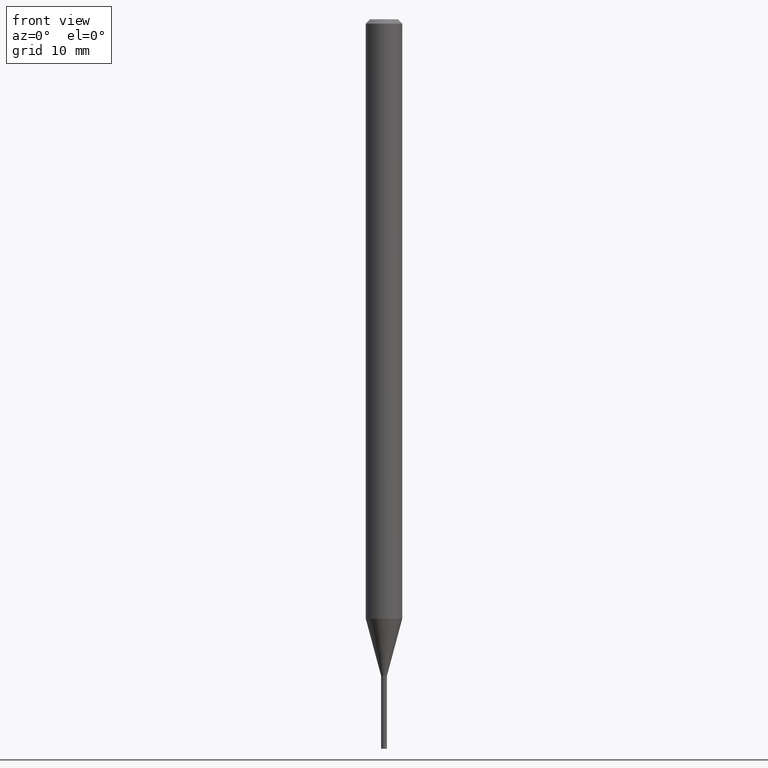
[diagram: clean part render]
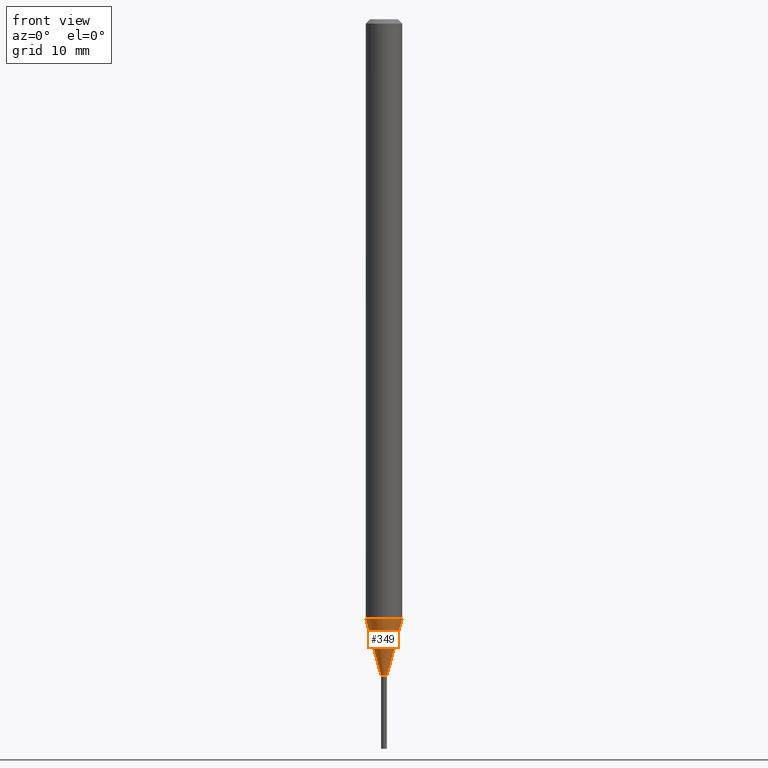
[diagram: same view with one face highlighted and labeled with its STEP entity id]
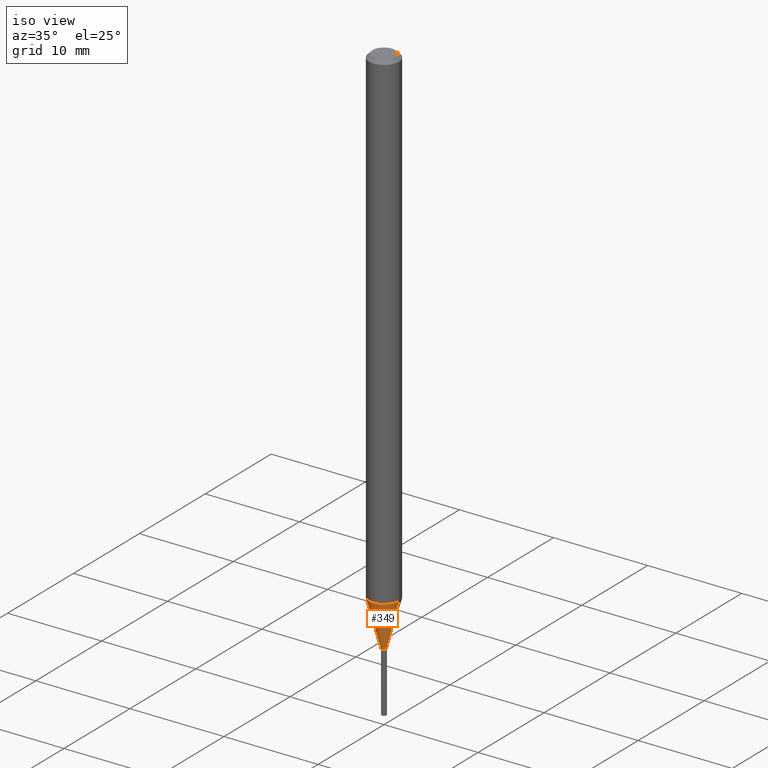
[diagram: same view with one face highlighted and labeled with its STEP entity id]
A machine part, front view. The second image highlights one B-rep face of the part: STEP entity #349.
A second angle (iso view) of the same face is appended — the face is thin or edge-on in the first view.
In plain terms, the highlighted conical surface has half-angle 15 deg.
Its self-contained STEP definition (entity closure, byte-faithful):
#5 = EDGE_CURVE ( 'NONE', #34, #466, #188, .T. ) ;
#10 = CARTESIAN_POINT ( 'NONE',  ( 5.023157587683648864E-29, -7.171737760509410545E-15, -2.054067332602632856 ) ) ;
#12 = VECTOR ( 'NONE', #259, 39.37007874015748143 ) ;
#17 = CARTESIAN_POINT ( 'NONE',  ( 0.009999999999999649794, -7.925662639173938591E-15, -2.250000000000000000 ) ) ;
#18 = CARTESIAN_POINT ( 'NONE',  ( -0.009999999999999649794, -7.256213644740208937E-15, -2.250000000000000000 ) ) ;
#22 = DIRECTION ( 'NONE',  ( 1.000000000000000000, -6.982962677686285643E-15, 0.000000000000000000 ) ) ;
#33 = EDGE_CURVE ( 'NONE', #113, #68, #265, .T. ) ;
#34 = VERTEX_POINT ( 'NONE', #18 ) ;
#55 = CIRCLE ( 'NONE', #118, 0.06250000000000000000 ) ;
#56 = CONICAL_SURFACE ( 'NONE', #299, 0.009999999999999649794, 0.2617993877991497964 ) ;
#68 = VERTEX_POINT ( 'NONE', #413 ) ;
#93 = AXIS2_PLACEMENT_3D ( 'NONE', #167, #203, #344 ) ;
#102 = FACE_OUTER_BOUND ( 'NONE', #276, .T. ) ;
#113 = VERTEX_POINT ( 'NONE', #17 ) ;
#118 = AXIS2_PLACEMENT_3D ( 'NONE', #10, #448, #231 ) ;
#139 = EDGE_CURVE ( 'NONE', #466, #68, #55, .T. ) ;
#158 = VECTOR ( 'NONE', #439, 39.37007874015748143 ) ;
#167 = CARTESIAN_POINT ( 'NONE',  ( 5.502304813916557343E-29, -7.855833012397078448E-15, -2.250000000000000000 ) ) ;
#170 = ORIENTED_EDGE ( 'NONE', *, *, #5, .F. ) ;
#188 = LINE ( 'NONE', #328, #158 ) ;
#202 = CARTESIAN_POINT ( 'NONE',  ( 5.502304813916557343E-29, -7.855833012397078448E-15, -2.250000000000000000 ) ) ;
#203 = DIRECTION ( 'NONE',  ( -2.445468806185136597E-29, 3.491481338843145583E-15, 1.000000000000000000 ) ) ;
#207 = CIRCLE ( 'NONE', #93, 0.009999999999999649794 ) ;
#231 = DIRECTION ( 'NONE',  ( 1.000000000000000000, -6.982962677686262766E-15, 0.000000000000000000 ) ) ;
#243 = DIRECTION ( 'NONE',  ( -2.445468806185136597E-29, 3.491481338843145583E-15, 1.000000000000000000 ) ) ;
#259 = DIRECTION ( 'NONE',  ( 0.2588190451025211281, 1.565188264969623940E-15, 0.9659258262890682012 ) ) ;
#265 = LINE ( 'NONE', #442, #12 ) ;
#276 = EDGE_LOOP ( 'NONE', ( #170, #390, #357, #423 ) ) ;
#298 = EDGE_CURVE ( 'NONE', #34, #113, #207, .T. ) ;
#299 = AXIS2_PLACEMENT_3D ( 'NONE', #202, #243, #22 ) ;
#328 = CARTESIAN_POINT ( 'NONE',  ( -0.009999999999999649794, -7.784778738821069944E-15, -2.250000000000000000 ) ) ;
#344 = DIRECTION ( 'NONE',  ( 1.000000000000000000, -6.982962677686285643E-15, 0.000000000000000000 ) ) ;
#349 = ADVANCED_FACE ( 'NONE', ( #102 ), #56, .T. ) ;
#350 = CARTESIAN_POINT ( 'NONE',  ( -0.06250000000000000000, -6.727648550659347140E-15, -2.054067332602632856 ) ) ;
#357 = ORIENTED_EDGE ( 'NONE', *, *, #33, .T. ) ;
#390 = ORIENTED_EDGE ( 'NONE', *, *, #298, .T. ) ;
#413 = CARTESIAN_POINT ( 'NONE',  ( 0.06250000000000000000, -7.608172927864802215E-15, -2.054067332602632856 ) ) ;
#423 = ORIENTED_EDGE ( 'NONE', *, *, #139, .F. ) ;
#439 = DIRECTION ( 'NONE',  ( -0.2588190451025211281, 5.211531920934548675E-15, 0.9659258262890682012 ) ) ;
#442 = CARTESIAN_POINT ( 'NONE',  ( 0.009999999999999649794, -7.925662639173938591E-15, -2.250000000000000000 ) ) ;
#448 = DIRECTION ( 'NONE',  ( -2.445468806185136597E-29, 3.491481338843145583E-15, 1.000000000000000000 ) ) ;
#466 = VERTEX_POINT ( 'NONE', #350 ) ;